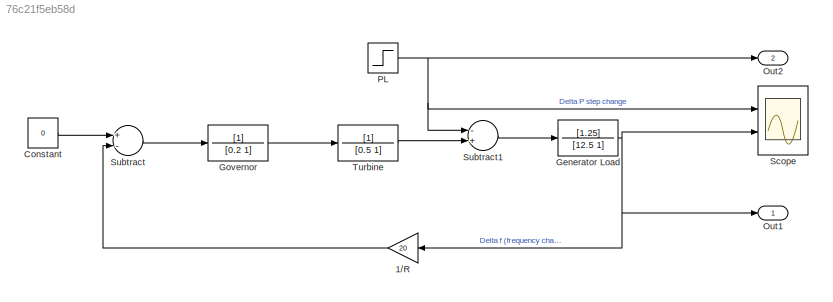
MODEL slx_76c21f5eb58d
KIND model
BLOCK [Gain] 1//R
  Gain = 20
  OutDataTypeStr = Inherit: Inherit via internal rule
  ParamDataTypeStr = Inherit: Inherit via internal rule
  SaturateOnIntegerOverflow = off
BLOCK [Constant] Constant
  Value = 0
BLOCK [TransferFcn] Generator Load
  Denominator = [12.5 1]
  Numerator = [1.25]
BLOCK [TransferFcn] Governor
  Denominator = [0.2 1]
BLOCK [Outport] Out1
  IconDisplay = Port number
BLOCK [Outport] Out2
  IconDisplay = Port number
  Port = 2
BLOCK [Step] PL
  After = 0.2
  SampleTime = 0
BLOCK [Scope] Scope
  Floating = off
  NumInputPorts = 2
  Ports = [2]
  ShowLegends = off
  YMax = 1~1
  YMin = -1~-1
  ZoomMode = yonly
BLOCK [Sum] Subtract
  InputSameDT = off
  Inputs = +-
  OutDataTypeStr = Inherit: Inherit via internal rule
  Ports = [2, 1]
  SaturateOnIntegerOverflow = off
BLOCK [Sum] Subtract1
  InputSameDT = off
  Inputs = -+
  OutDataTypeStr = Inherit: Inherit via internal rule
  Ports = [2, 1]
  SaturateOnIntegerOverflow = off
BLOCK [TransferFcn] Turbine
  Denominator = [0.5 1]
LINE 1//R:1 -> Subtract:2
LINE Constant:1 -> Subtract:1
NET Generator Load:1 -> 1//R:1, Out1:1, Scope:2
LINE Governor:1 -> Turbine:1
NET PL:1 -> Out2:1, Scope:1, Subtract1:1
LINE Subtract1:1 -> Generator Load:1
LINE Subtract:1 -> Governor:1
LINE Turbine:1 -> Subtract1:2
note: NET lines group one-source signal fan-out (src -> all destinations, sorted); 1:1 wires keep LINE
